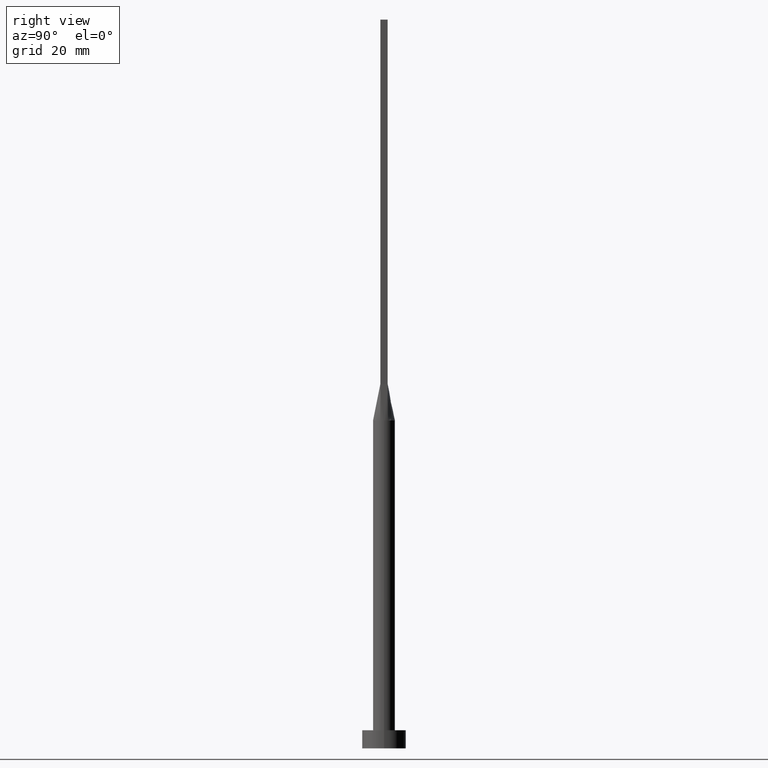
[diagram: clean part render]
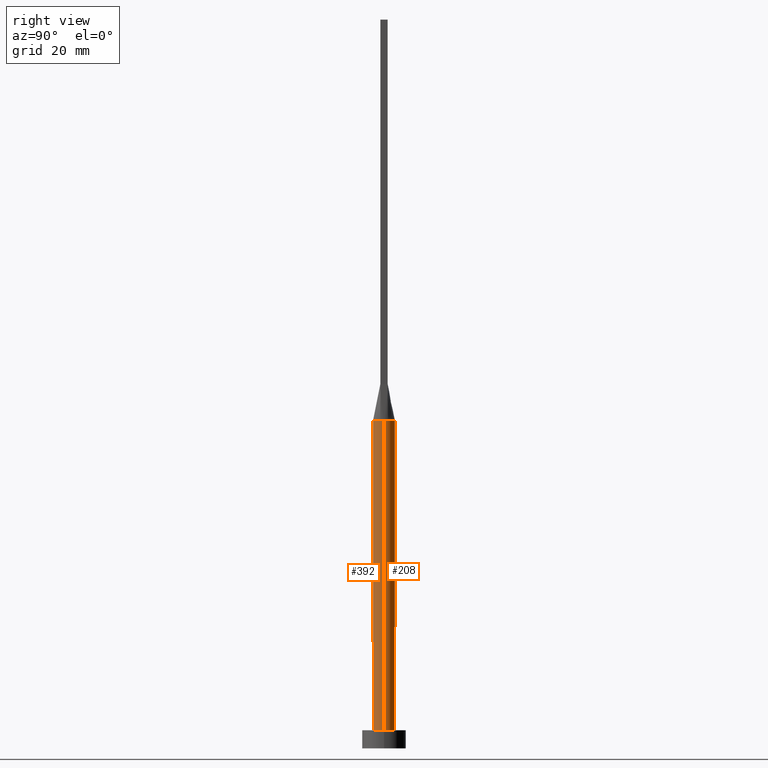
[diagram: same view with one multi-face feature highlighted, each face labeled with its STEP entity id]
A machine part, right view. The highlighted faces form ONE feature: a constant-radius fillet chain: 2 tangent blend faces with common blend radius 3 mm. The faces share edges in the B-rep.
Their STEP definitions:
[1] entity #392 (Cylinder):
#4 = CYLINDRICAL_SURFACE ( 'NONE', #550, 3.000000000000000444 ) ;
#5 = VERTEX_POINT ( 'NONE', #452 ) ;
#22 = CIRCLE ( 'NONE', #347, 3.000000000000000444 ) ;
#33 = ORIENTED_EDGE ( 'NONE', *, *, #255, .F. ) ;
#47 = CARTESIAN_POINT ( 'NONE',  ( 0.000000000000000000, 0.000000000000000000, 90.00000000000001421 ) ) ;
#55 = CARTESIAN_POINT ( 'NONE',  ( 3.000000000000000444, 3.673940397442060361E-16, 5.000000000000000000 ) ) ;
#61 = EDGE_CURVE ( 'NONE', #258, #5, #261, .T. ) ;
#62 = CARTESIAN_POINT ( 'NONE',  ( 0.000000000000000000, 0.000000000000000000, 90.00000000000001421 ) ) ;
#87 = VERTEX_POINT ( 'NONE', #55 ) ;
#88 = EDGE_CURVE ( 'NONE', #202, #87, #439, .T. ) ;
#96 = CARTESIAN_POINT ( 'NONE',  ( 3.000000000000000444, 7.514166843208536743E-18, 90.00000000000001421 ) ) ;
#102 = ORIENTED_EDGE ( 'NONE', *, *, #61, .F. ) ;
#127 = DIRECTION ( 'NONE',  ( -0.000000000000000000, -0.000000000000000000, -1.000000000000000000 ) ) ;
#138 = CARTESIAN_POINT ( 'NONE',  ( 3.000000000000000444, 3.673940397442060361E-16, 90.00000000000001421 ) ) ;
#160 = DIRECTION ( 'NONE',  ( 0.000000000000000000, 0.000000000000000000, 1.000000000000000000 ) ) ;
#165 = AXIS2_PLACEMENT_3D ( 'NONE', #442, #180, #499 ) ;
#180 = DIRECTION ( 'NONE',  ( 0.000000000000000000, 0.000000000000000000, 1.000000000000000000 ) ) ;
#200 = DIRECTION ( 'NONE',  ( 1.000000000000000000, 0.000000000000000000, 0.000000000000000000 ) ) ;
#202 = VERTEX_POINT ( 'NONE', #553 ) ;
#207 = ORIENTED_EDGE ( 'NONE', *, *, #464, .F. ) ;
#213 = VECTOR ( 'NONE', #306, 1000.000000000000000 ) ;
#220 = ORIENTED_EDGE ( 'NONE', *, *, #383, .T. ) ;
#224 = DIRECTION ( 'NONE',  ( -0.000000000000000000, -0.000000000000000000, -1.000000000000000000 ) ) ;
#231 = AXIS2_PLACEMENT_3D ( 'NONE', #62, #160, #200 ) ;
#255 = EDGE_CURVE ( 'NONE', #5, #423, #489, .T. ) ;
#258 = VERTEX_POINT ( 'NONE', #286 ) ;
#261 = CIRCLE ( 'NONE', #165, 3.000000000000000444 ) ;
#265 = DIRECTION ( 'NONE',  ( 0.000000000000000000, 0.000000000000000000, 1.000000000000000000 ) ) ;
#272 = DIRECTION ( 'NONE',  ( 1.000000000000000000, 8.881784197001252323E-16, 0.000000000000000000 ) ) ;
#286 = CARTESIAN_POINT ( 'NONE',  ( -3.000000000000000444, -1.370010780910363192E-16, 90.00000000000001421 ) ) ;
#306 = DIRECTION ( 'NONE',  ( -0.000000000000000000, -0.000000000000000000, -1.000000000000000000 ) ) ;
#311 = FACE_OUTER_BOUND ( 'NONE', #532, .T. ) ;
#315 = CARTESIAN_POINT ( 'NONE',  ( 0.000000000000000000, 0.000000000000000000, 90.00000000000001421 ) ) ;
#347 = AXIS2_PLACEMENT_3D ( 'NONE', #47, #265, #272 ) ;
#348 = LINE ( 'NONE', #443, #213 ) ;
#356 = ORIENTED_EDGE ( 'NONE', *, *, #88, .T. ) ;
#362 = DIRECTION ( 'NONE',  ( 0.000000000000000000, 0.000000000000000000, 1.000000000000000000 ) ) ;
#383 = EDGE_CURVE ( 'NONE', #258, #202, #348, .T. ) ;
#392 = ADVANCED_FACE ( 'NONE', ( #311 ), #4, .T. ) ;
#405 = CARTESIAN_POINT ( 'NONE',  ( 0.000000000000000000, 0.000000000000000000, 5.000000000000000000 ) ) ;
#417 = AXIS2_PLACEMENT_3D ( 'NONE', #405, #362, #503 ) ;
#423 = VERTEX_POINT ( 'NONE', #535 ) ;
#437 = VECTOR ( 'NONE', #224, 1000.000000000000000 ) ;
#439 = CIRCLE ( 'NONE', #417, 3.000000000000000444 ) ;
#442 = CARTESIAN_POINT ( 'NONE',  ( 0.000000000000000000, 0.000000000000000000, 90.00000000000001421 ) ) ;
#443 = CARTESIAN_POINT ( 'NONE',  ( -3.000000000000000444, 0.000000000000000000, 90.00000000000001421 ) ) ;
#452 = CARTESIAN_POINT ( 'NONE',  ( -2.819413526938078007, -1.025241406939941369, 90.00000000000001421 ) ) ;
#464 = EDGE_CURVE ( 'NONE', #477, #87, #545, .T. ) ;
#477 = VERTEX_POINT ( 'NONE', #96 ) ;
#486 = DIRECTION ( 'NONE',  ( -1.000000000000000000, 0.000000000000000000, 0.000000000000000000 ) ) ;
#489 = CIRCLE ( 'NONE', #231, 3.000000000000000444 ) ;
#499 = DIRECTION ( 'NONE',  ( 1.000000000000000000, 0.000000000000000000, 0.000000000000000000 ) ) ;
#503 = DIRECTION ( 'NONE',  ( 1.000000000000000000, 0.000000000000000000, 0.000000000000000000 ) ) ;
#511 = EDGE_CURVE ( 'NONE', #423, #477, #22, .T. ) ;
#528 = ORIENTED_EDGE ( 'NONE', *, *, #511, .F. ) ;
#532 = EDGE_LOOP ( 'NONE', ( #207, #528, #33, #102, #220, #356 ) ) ;
#535 = CARTESIAN_POINT ( 'NONE',  ( 2.819430526142641558, -1.025247683279450817, 90.00000000000001421 ) ) ;
#545 = LINE ( 'NONE', #138, #437 ) ;
#550 = AXIS2_PLACEMENT_3D ( 'NONE', #315, #127, #486 ) ;
#553 = CARTESIAN_POINT ( 'NONE',  ( -3.000000000000000444, 0.000000000000000000, 5.000000000000000000 ) ) ;
[2] entity #208 (Cylinder):
#9 = EDGE_CURVE ( 'NONE', #477, #407, #185, .T. ) ;
#17 = EDGE_CURVE ( 'NONE', #87, #202, #43, .T. ) ;
#20 = AXIS2_PLACEMENT_3D ( 'NONE', #541, #403, #267 ) ;
#25 = EDGE_CURVE ( 'NONE', #544, #258, #183, .T. ) ;
#32 = CARTESIAN_POINT ( 'NONE',  ( -1.627925520694712747, 2.539128397820341831, 90.00000000000000000 ) ) ;
#43 = CIRCLE ( 'NONE', #70, 3.000000000000000444 ) ;
#55 = CARTESIAN_POINT ( 'NONE',  ( 3.000000000000000444, 3.673940397442060361E-16, 5.000000000000000000 ) ) ;
#70 = AXIS2_PLACEMENT_3D ( 'NONE', #225, #357, #496 ) ;
#87 = VERTEX_POINT ( 'NONE', #55 ) ;
#92 = DIRECTION ( 'NONE',  ( 1.000000000000000000, 0.000000000000000000, 0.000000000000000000 ) ) ;
#96 = CARTESIAN_POINT ( 'NONE',  ( 3.000000000000000444, 7.514166843208536743E-18, 90.00000000000001421 ) ) ;
#97 = AXIS2_PLACEMENT_3D ( 'NONE', #144, #412, #195 ) ;
#113 = CARTESIAN_POINT ( 'NONE',  ( 2.314486317179579977, 1.928337902455807384, 90.00000000000002842 ) ) ;
#117 = CARTESIAN_POINT ( 'NONE',  ( -2.115507543051069916, 2.149870311632977593, 90.00000000000001421 ) ) ;
#118 = CARTESIAN_POINT ( 'NONE',  ( 2.115507543051069916, 2.149870311632976705, 90.00000000000001421 ) ) ;
#119 = ORIENTED_EDGE ( 'NONE', *, *, #17, .T. ) ;
#128 = ORIENTED_EDGE ( 'NONE', *, *, #464, .T. ) ;
#138 = CARTESIAN_POINT ( 'NONE',  ( 3.000000000000000444, 3.673940397442060361E-16, 90.00000000000001421 ) ) ;
#140 = CARTESIAN_POINT ( 'NONE',  ( -2.819429393986302657, 1.025247261300842760, 90.00000000000001421 ) ) ;
#142 = CARTESIAN_POINT ( 'NONE',  ( 0.000000000000000000, 0.000000000000000000, 90.00000000000001421 ) ) ;
#144 = CARTESIAN_POINT ( 'NONE',  ( 0.000000000000000000, 0.000000000000000000, 90.00000000000001421 ) ) ;
#151 = FACE_OUTER_BOUND ( 'NONE', #222, .T. ) ;
#158 = CARTESIAN_POINT ( 'NONE',  ( 1.338960936578149630, 2.706038443291637563, 90.00000000000000000 ) ) ;
#182 = ORIENTED_EDGE ( 'NONE', *, *, #383, .F. ) ;
#183 = CIRCLE ( 'NONE', #20, 3.000000000000000444 ) ;
#185 = CIRCLE ( 'NONE', #517, 3.000000000000000444 ) ;
#195 = DIRECTION ( 'NONE',  ( -1.000000000000000000, 0.000000000000000000, 0.000000000000000000 ) ) ;
#202 = VERTEX_POINT ( 'NONE', #553 ) ;
#208 = ADVANCED_FACE ( 'NONE', ( #151 ), #364, .T. ) ;
#209 = CARTESIAN_POINT ( 'NONE',  ( 1.627925520694712080, 2.539128397820340943, 90.00000000000001421 ) ) ;
#213 = VECTOR ( 'NONE', #306, 1000.000000000000000 ) ;
#222 = EDGE_LOOP ( 'NONE', ( #303, #128, #119, #182, #390, #483 ) ) ;
#224 = DIRECTION ( 'NONE',  ( -0.000000000000000000, -0.000000000000000000, -1.000000000000000000 ) ) ;
#225 = CARTESIAN_POINT ( 'NONE',  ( 0.000000000000000000, 0.000000000000000000, 5.000000000000000000 ) ) ;
#257 = CARTESIAN_POINT ( 'NONE',  ( 2.625980160873452540, 1.476334031700886618, 90.00000000000001421 ) ) ;
#258 = VERTEX_POINT ( 'NONE', #286 ) ;
#267 = DIRECTION ( 'NONE',  ( 1.000000000000000000, 0.000000000000000000, 0.000000000000000000 ) ) ;
#286 = CARTESIAN_POINT ( 'NONE',  ( -3.000000000000000444, -1.370010780910363192E-16, 90.00000000000001421 ) ) ;
#291 = CARTESIAN_POINT ( 'NONE',  ( -0.3502136323054376721, 2.999999999999999112, 90.00000000000002842 ) ) ;
#303 = ORIENTED_EDGE ( 'NONE', *, *, #9, .F. ) ;
#306 = DIRECTION ( 'NONE',  ( -0.000000000000000000, -0.000000000000000000, -1.000000000000000000 ) ) ;
#309 = EDGE_CURVE ( 'NONE', #407, #544, #509, .T. ) ;
#342 = CARTESIAN_POINT ( 'NONE',  ( -2.739088299662392423, 1.246032108968142316, 90.00000000000002842 ) ) ;
#348 = LINE ( 'NONE', #443, #213 ) ;
#357 = DIRECTION ( 'NONE',  ( 0.000000000000000000, 0.000000000000000000, 1.000000000000000000 ) ) ;
#364 = CYLINDRICAL_SURFACE ( 'NONE', #97, 3.000000000000000444 ) ;
#376 = CARTESIAN_POINT ( 'NONE',  ( 2.739088299662392867, 1.246032108968142538, 90.00000000000002842 ) ) ;
#383 = EDGE_CURVE ( 'NONE', #258, #202, #348, .T. ) ;
#390 = ORIENTED_EDGE ( 'NONE', *, *, #25, .F. ) ;
#403 = DIRECTION ( 'NONE',  ( 0.000000000000000000, 0.000000000000000000, 1.000000000000000000 ) ) ;
#407 = VERTEX_POINT ( 'NONE', #446 ) ;
#412 = DIRECTION ( 'NONE',  ( -0.000000000000000000, -0.000000000000000000, -1.000000000000000000 ) ) ;
#433 = CARTESIAN_POINT ( 'NONE',  ( -2.314486317179579977, 1.928337902455808051, 90.00000000000001421 ) ) ;
#437 = VECTOR ( 'NONE', #224, 1000.000000000000000 ) ;
#443 = CARTESIAN_POINT ( 'NONE',  ( -3.000000000000000444, 0.000000000000000000, 90.00000000000001421 ) ) ;
#446 = CARTESIAN_POINT ( 'NONE',  ( 2.819412401233197141, 1.025240989080170806, 90.00000000000001421 ) ) ;
#464 = EDGE_CURVE ( 'NONE', #477, #87, #545, .T. ) ;
#470 = CARTESIAN_POINT ( 'NONE',  ( -2.625980160873452096, 1.476334031700886396, 90.00000000000001421 ) ) ;
#472 = CARTESIAN_POINT ( 'NONE',  ( -2.819429393986302657, 1.025247261300842760, 90.00000000000001421 ) ) ;
#477 = VERTEX_POINT ( 'NONE', #96 ) ;
#483 = ORIENTED_EDGE ( 'NONE', *, *, #309, .F. ) ;
#493 = DIRECTION ( 'NONE',  ( 0.000000000000000000, 0.000000000000000000, 1.000000000000000000 ) ) ;
#496 = DIRECTION ( 'NONE',  ( 1.000000000000000000, 0.000000000000000000, 0.000000000000000000 ) ) ;
#509 = B_SPLINE_CURVE_WITH_KNOTS ( 'NONE', 3,
 ( #570, #376, #257, #113, #118, #209, #158, #568, #577, #291, #519, #564, #32, #117, #433, #470, #342, #472 ),
 .UNSPECIFIED., .F., .F.,
 ( 4, 2, 2, 2, 2, 2, 2, 2, 4 ),
 ( 0.000000000000000000, 0.1249999999999998890, 0.2499999999999997780, 0.3749999999999997780, 0.4999999999999997780, 0.6249999999999997780, 0.7499999999999997780, 0.8749999999999998890, 1.000000000000000000 ),
 .UNSPECIFIED. ) ;
#517 = AXIS2_PLACEMENT_3D ( 'NONE', #142, #493, #92 ) ;
#519 = CARTESIAN_POINT ( 'NONE',  ( -0.6998073349918608743, 2.936959335800557014, 90.00000000000000000 ) ) ;
#541 = CARTESIAN_POINT ( 'NONE',  ( 0.000000000000000000, 0.000000000000000000, 90.00000000000001421 ) ) ;
#544 = VERTEX_POINT ( 'NONE', #140 ) ;
#545 = LINE ( 'NONE', #138, #437 ) ;
#553 = CARTESIAN_POINT ( 'NONE',  ( -3.000000000000000444, 0.000000000000000000, 5.000000000000000000 ) ) ;
#564 = CARTESIAN_POINT ( 'NONE',  ( -1.338960936578149408, 2.706038443291637119, 90.00000000000000000 ) ) ;
#568 = CARTESIAN_POINT ( 'NONE',  ( 0.6998073349918605413, 2.936959335800557014, 89.99999999999997158 ) ) ;
#570 = CARTESIAN_POINT ( 'NONE',  ( 2.819412401233197141, 1.025240989080170806, 90.00000000000001421 ) ) ;
#577 = CARTESIAN_POINT ( 'NONE',  ( 0.3502136323054376721, 3.000000000000000444, 90.00000000000001421 ) ) ;